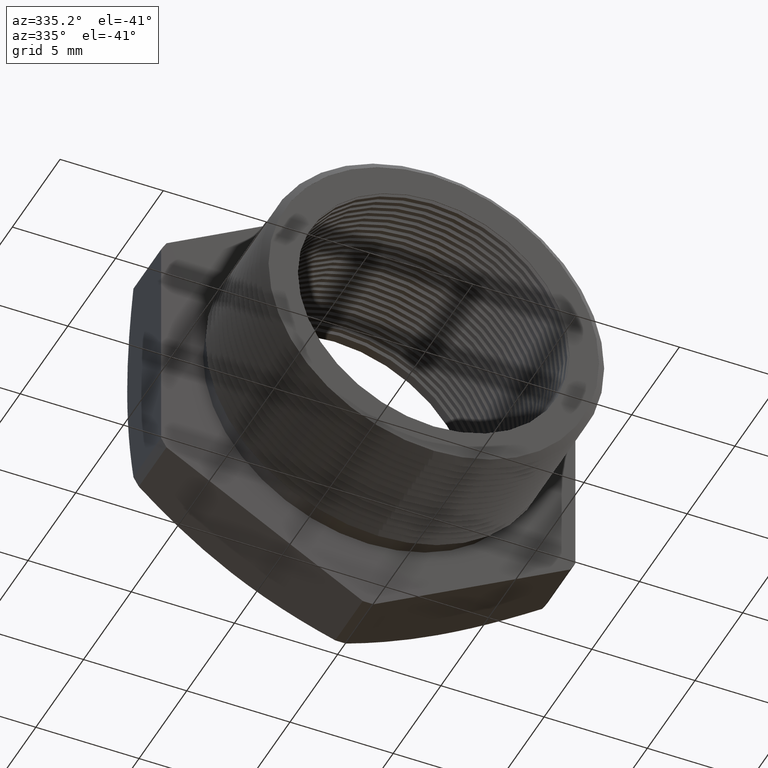
[diagram: clean part render]
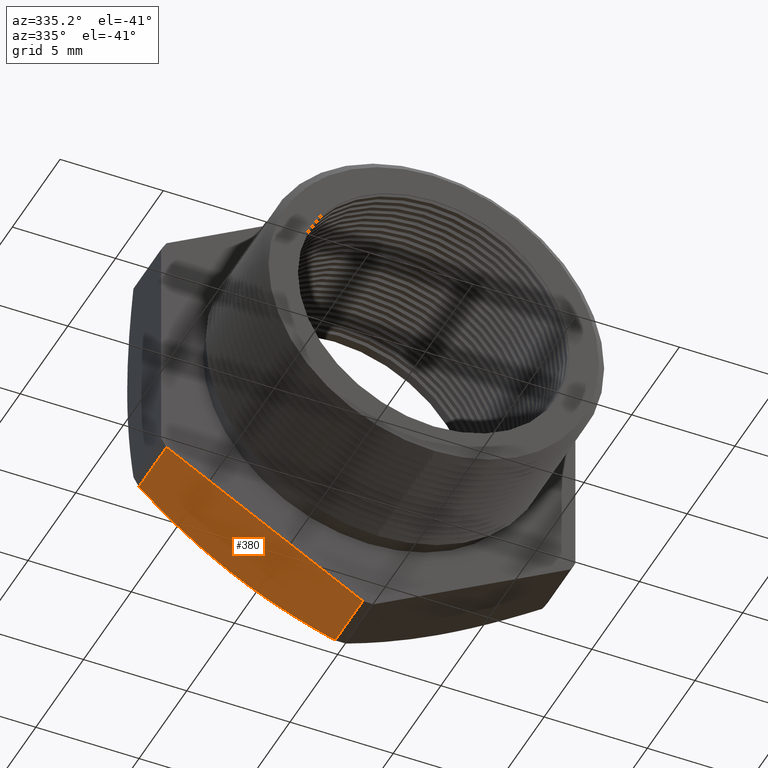
[diagram: same view with one face highlighted and labeled with its STEP entity id]
A machine part, auxiliary view. The second image highlights one B-rep face of the part: STEP entity #380.
In plain terms, the highlighted planar face has unit normal (-0.5, 0, -0.866).
Its self-contained STEP definition (entity closure, byte-faithful):
#380 = ADVANCED_FACE ( 'NONE', ( #4369 ), #4368, .T. ) ;
#382 = EDGE_LOOP ( 'NONE', ( #383, #385, #389, #394, #396 ) ) ;
#383 = ORIENTED_EDGE ( 'NONE', *, *, #3569, .F. ) ;
#385 = ORIENTED_EDGE ( 'NONE', *, *, #387, .T. ) ;
#387 = EDGE_CURVE ( 'NONE', #3588, #3406, #4418, .T. ) ;
#389 = ORIENTED_EDGE ( 'NONE', *, *, #391, .T. ) ;
#391 = EDGE_CURVE ( 'NONE', #3406, #3381, #4405, .T. ) ;
#394 = ORIENTED_EDGE ( 'NONE', *, *, #3375, .F. ) ;
#396 = ORIENTED_EDGE ( 'NONE', *, *, #425, .F. ) ;
#425 = EDGE_CURVE ( 'NONE', #3571, #3372, #4452, .T. ) ;
#833 = DIRECTION ( 'NONE',  ( 0.0000000000000000000, 1.000000000000000000, 0.0000000000000000000 ) ) ;
#834 = VECTOR ( 'NONE', #833, 39.37007874015748100 ) ;
#835 = CARTESIAN_POINT ( 'NONE',  ( -0.01026000026703678500, 0.0000000000000000000, -0.4501830987437449000 ) ) ;
#836 = LINE ( 'NONE', #835, #834 ) ;
#841 = CARTESIAN_POINT ( 'NONE',  ( -0.01026000026703716000, 0.2675548905829480100, -0.4501830987437449600 ) ) ;
#882 = CARTESIAN_POINT ( 'NONE',  ( -0.01026000026703699200, 0.3817680770869766300, -0.4501830987437449000 ) ) ;
#900 = CARTESIAN_POINT ( 'NONE',  ( -0.1975000000000000900, 0.4075548905829479200, -0.3420800344948533000 ) ) ;
#1245 = CARTESIAN_POINT ( 'NONE',  ( -0.3847399997329631900, 0.3817680770869766300, -0.2339769702459613400 ) ) ;
#1267 = CARTESIAN_POINT ( 'NONE',  ( -0.3847399997329630200, 0.2675548905829480100, -0.2339769702459614800 ) ) ;
#1268 = DIRECTION ( 'NONE',  ( -0.0000000000000000000, -1.000000000000000000, -0.0000000000000000000 ) ) ;
#1269 = VECTOR ( 'NONE', #1268, 39.37007874015748100 ) ;
#1270 = CARTESIAN_POINT ( 'NONE',  ( -0.3847399997329631900, 0.0000000000000000000, -0.2339769702459612600 ) ) ;
#1271 = LINE ( 'NONE', #1270, #1269 ) ;
#3372 = VERTEX_POINT ( 'NONE', #841 ) ;
#3375 = EDGE_CURVE ( 'NONE', #3372, #3381, #836, .T. ) ;
#3381 = VERTEX_POINT ( 'NONE', #882 ) ;
#3406 = VERTEX_POINT ( 'NONE', #900 ) ;
#3569 = EDGE_CURVE ( 'NONE', #3588, #3571, #1271, .T. ) ;
#3571 = VERTEX_POINT ( 'NONE', #1267 ) ;
#3588 = VERTEX_POINT ( 'NONE', #1245 ) ;
#4364 = DIRECTION ( 'NONE',  ( -0.8660254037844386000, 0.0000000000000000000, 0.5000000000000001100 ) ) ;
#4365 = DIRECTION ( 'NONE',  ( -0.5000000000000001100, 0.0000000000000000000, -0.8660254037844386000 ) ) ;
#4366 = CARTESIAN_POINT ( 'NONE',  ( -0.3949999999999999600, 0.4075548905829479700, -0.2280533563299020300 ) ) ;
#4367 = AXIS2_PLACEMENT_3D ( 'NONE', #4366, #4365, #4364 ) ;
#4368 = PLANE ( 'NONE',  #4367 ) ;
#4369 = FACE_OUTER_BOUND ( 'NONE', #382, .T. ) ;
#4398 = CARTESIAN_POINT ( 'NONE',  ( -0.01026000026703699200, 0.3817680770869766300, -0.4501830987437449000 ) ) ;
#4399 = CARTESIAN_POINT ( 'NONE',  ( -0.04113558834110785800, 0.3897502881590466700, -0.4323570696577919700 ) ) ;
#4400 = CARTESIAN_POINT ( 'NONE',  ( -0.07225680565382704100, 0.3962764420413619800, -0.4143892264647846000 ) ) ;
#4401 = CARTESIAN_POINT ( 'NONE',  ( -0.1350411223813805000, 0.4052207272773966600, -0.3781406843012451400 ) ) ;
#4402 = CARTESIAN_POINT ( 'NONE',  ( -0.1663280206471309000, 0.4075548905829478600, -0.3600771851654055400 ) ) ;
#4403 = CARTESIAN_POINT ( 'NONE',  ( -0.1975000000000000900, 0.4075548905829479200, -0.3420800344948533000 ) ) ;
#4405 = B_SPLINE_CURVE_WITH_KNOTS ( 'NONE', 3,
 ( #4403, #4402, #4401, #4400, #4399, #4398 ),
 .UNSPECIFIED., .F., .F.,
 ( 4, 2, 4 ),
 ( 0.005520192186429575900, 0.008258536476824122200, 0.01099688076721866900 ),
 .UNSPECIFIED. ) ;
#4411 = CARTESIAN_POINT ( 'NONE',  ( -0.1975000000000000900, 0.4075548905829479200, -0.3420800344948533000 ) ) ;
#4412 = CARTESIAN_POINT ( 'NONE',  ( -0.2289182622552070900, 0.4075548905829479700, -0.3239406923243390300 ) ) ;
#4413 = CARTESIAN_POINT ( 'NONE',  ( -0.2602199223343859000, 0.4051865378565924200, -0.3058686704515429200 ) ) ;
#4414 = CARTESIAN_POINT ( 'NONE',  ( -0.3226184986981742700, 0.3962912005447679100, -0.2698428355908604200 ) ) ;
#4415 = CARTESIAN_POINT ( 'NONE',  ( -0.3537166105170324600, 0.3897884989263426000, -0.2518883323609534800 ) ) ;
#4416 = CARTESIAN_POINT ( 'NONE',  ( -0.3847399997329631900, 0.3817680770869766300, -0.2339769702459613400 ) ) ;
#4418 = B_SPLINE_CURVE_WITH_KNOTS ( 'NONE', 3,
 ( #4416, #4415, #4414, #4413, #4412, #4411 ),
 .UNSPECIFIED., .F., .F.,
 ( 4, 2, 4 ),
 ( 2.335025902589511500E-007, 0.002760212844509917500, 0.005520192186429575900 ),
 .UNSPECIFIED. ) ;
#4449 = DIRECTION ( 'NONE',  ( 0.8660254037844386000, 0.0000000000000000000, -0.5000000000000002200 ) ) ;
#4450 = VECTOR ( 'NONE', #4449, 39.37007874015747400 ) ;
#4451 = CARTESIAN_POINT ( 'NONE',  ( 0.03874999999999989600, 0.2675548905829480100, -0.4784790355909022700 ) ) ;
#4452 = LINE ( 'NONE', #4451, #4450 ) ;